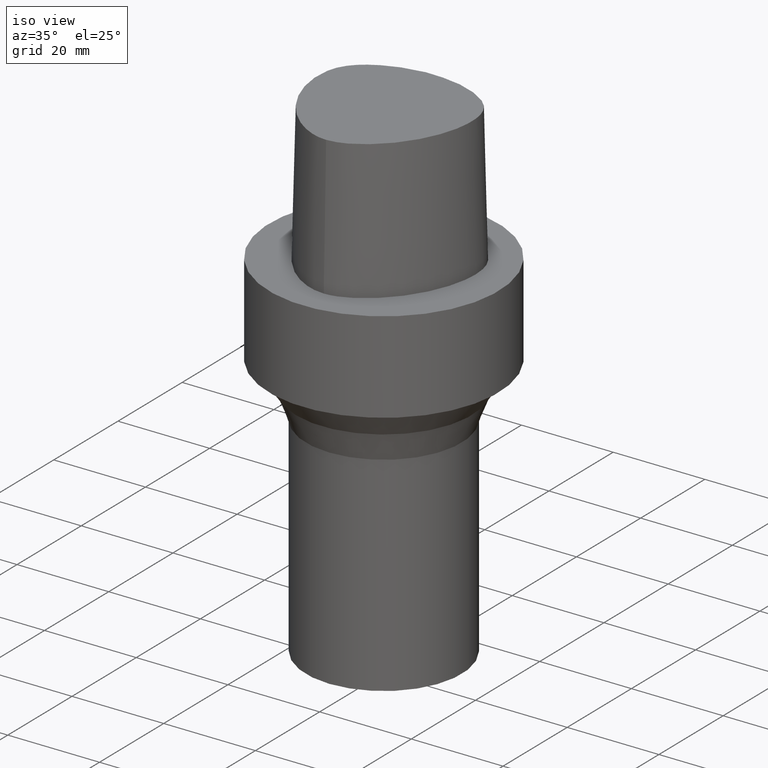
[diagram: clean part render]
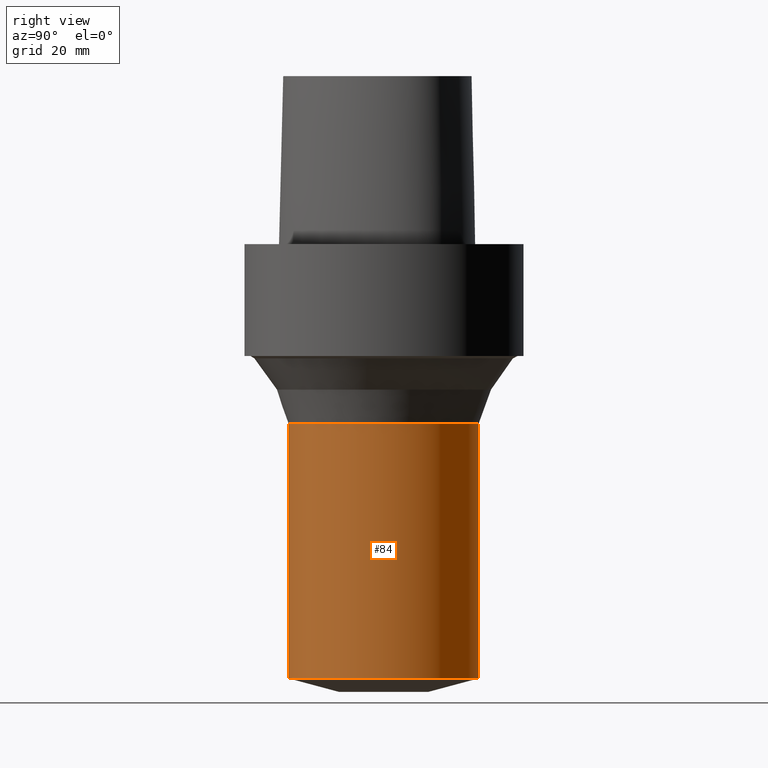
[diagram: tour spotlight — one face highlighted and labeled with its STEP entity id]
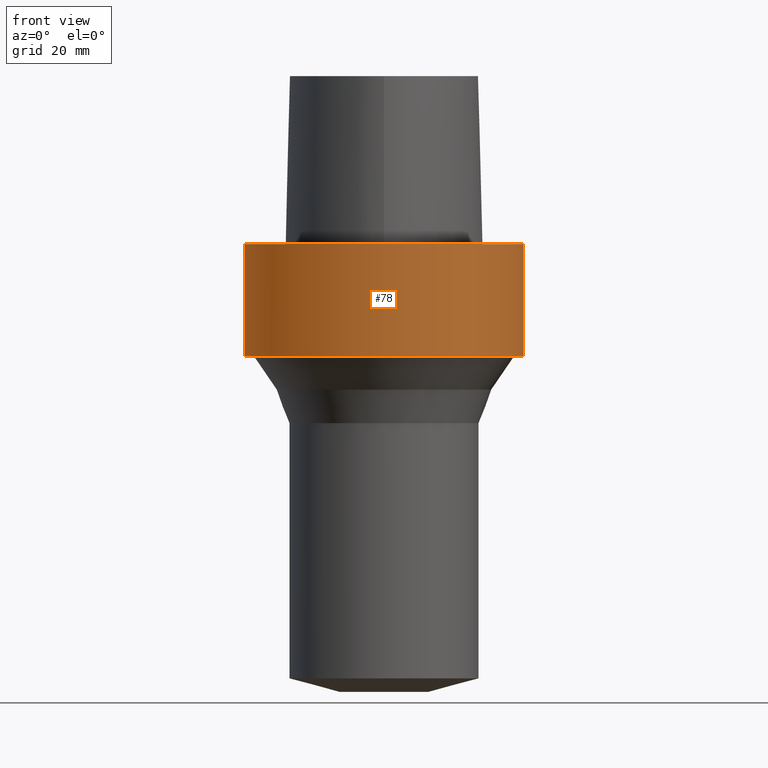
[diagram: tour spotlight — one face highlighted and labeled with its STEP entity id]
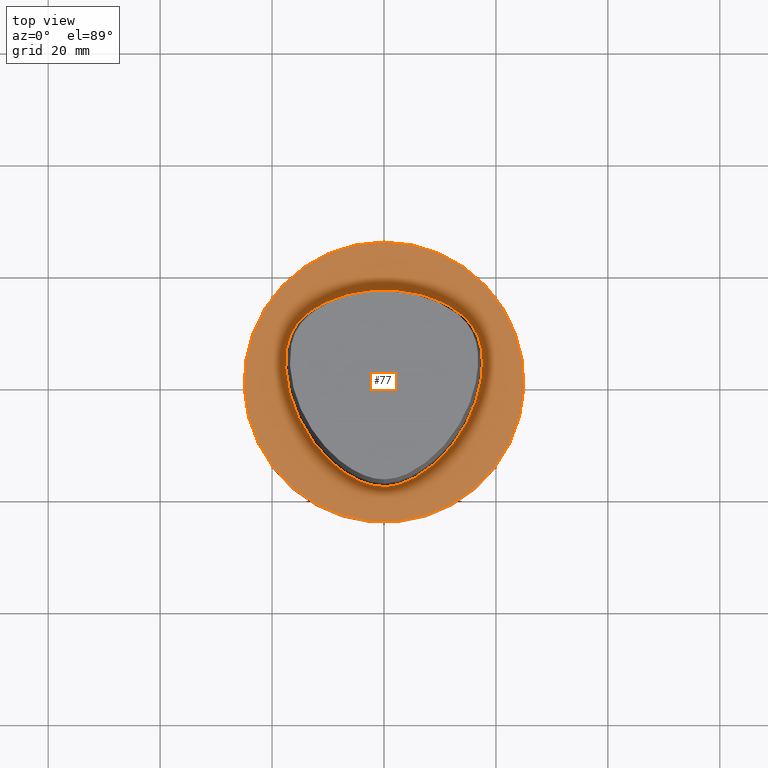
[diagram: tour spotlight — one face highlighted and labeled with its STEP entity id]
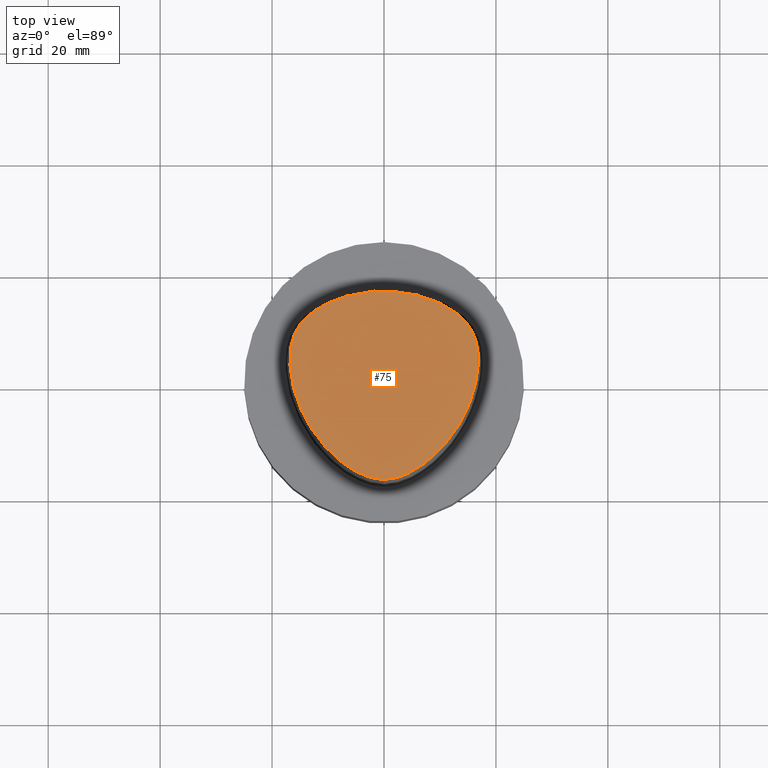
[diagram: tour spotlight — one face highlighted and labeled with its STEP entity id]
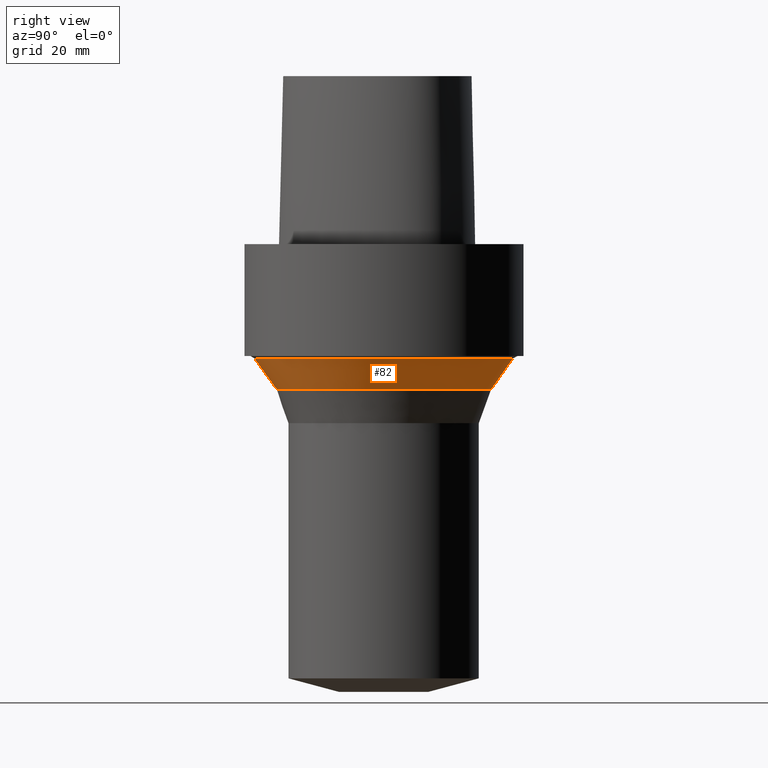
[diagram: tour spotlight — one face highlighted and labeled with its STEP entity id]
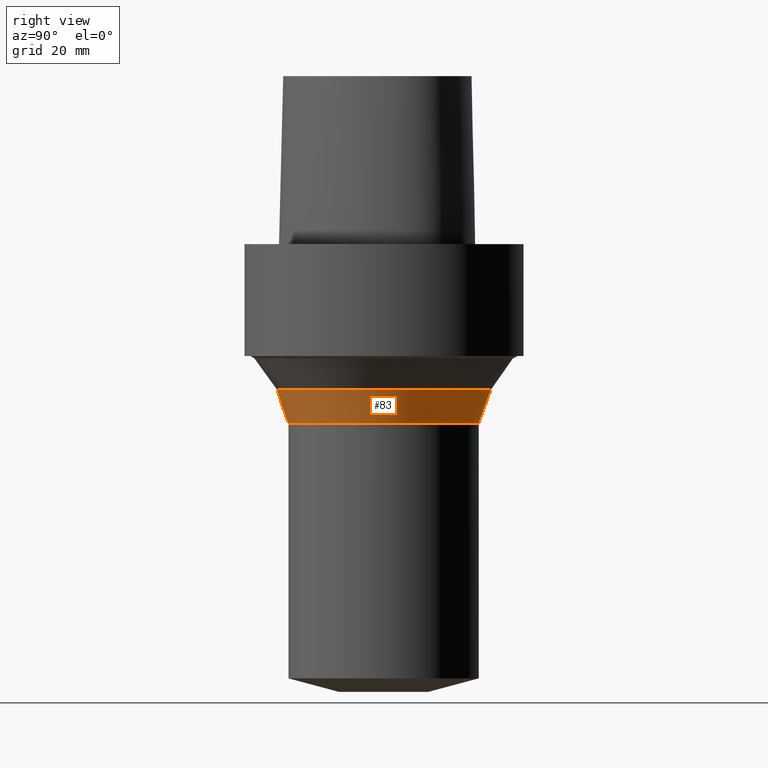
[diagram: tour spotlight — one face highlighted and labeled with its STEP entity id]
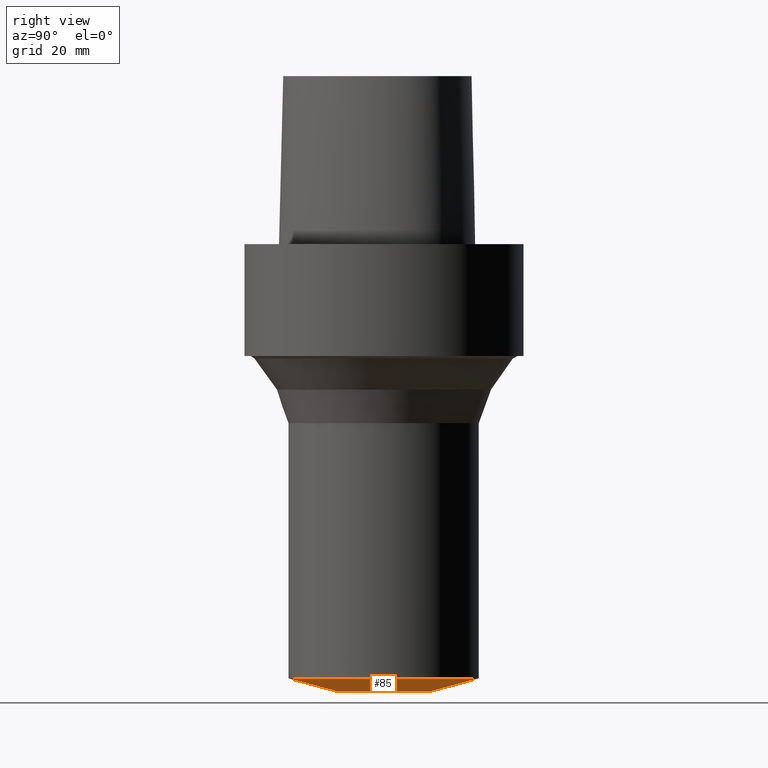
[diagram: tour spotlight — one face highlighted and labeled with its STEP entity id]
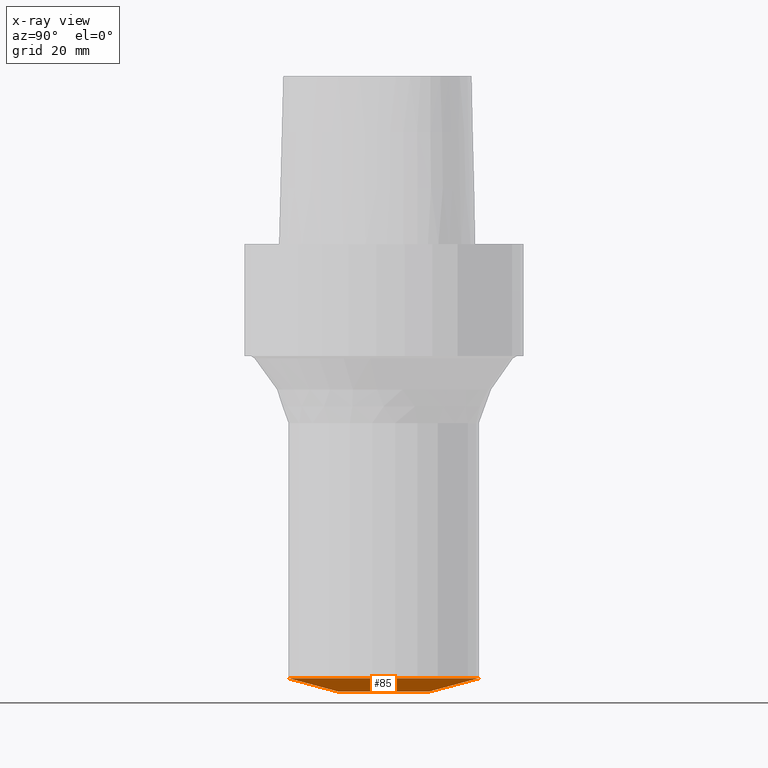
[diagram: x-ray of the same camera — body ghosted, this tour face saturated]
A machine part: a face-by-face anatomy tour. The part has 11 B-rep faces; the first image is the clean iso view, then the 7 largest visible faces are spotlighted one at a time (largest first), each with its STEP entity span.

Face 1 — right view, entity #84. In plain terms, the highlighted cylindrical surface (bore or boss wall) has radius 17 mm, axis along (-0, -0, 1).
Definition (entity closure, byte-faithful):
#84=ADVANCED_FACE('',(#111,#112),#113,.T.);
#111=FACE_BOUND('',#524,.T.);
#112=FACE_BOUND('',#525,.T.);
#113=CYLINDRICAL_SURFACE('',#526,17.0);
#524=EDGE_LOOP('',(#572));
#525=EDGE_LOOP('',(#573));
#526=AXIS2_PLACEMENT_3D('',#574,#575,#576);
#572=ORIENTED_EDGE('',*,*,#592,.F.);
#573=ORIENTED_EDGE('',*,*,#591,.T.);
#574=CARTESIAN_POINT('',(3.35517883539202E-015,6.71035767078405E-015,-54.7942286335624));
#575=DIRECTION('',(-6.12323399573676E-017,-1.22464679914735E-016,1.0));
#576=DIRECTION('',(-1.23259516440783E-032,1.0,1.22464679914735E-016));
#591=EDGE_CURVE('',#610,#610,#611,.T.);
#592=EDGE_CURVE('',#612,#612,#613,.T.);
#610=VERTEX_POINT('',#777);
#611=CIRCLE('',#778,17.0);
#612=VERTEX_POINT('',#779);
#613=CIRCLE('',#780,17.0);
#777=CARTESIAN_POINT('',(1.95943487893517E-015,17.0,-32.0000000048897));
#778=AXIS2_PLACEMENT_3D('',#799,#800,#801);
#779=CARTESIAN_POINT('',(4.75092279184887E-015,17.0,-77.5884572622352));
#780=AXIS2_PLACEMENT_3D('',#802,#803,#804);
#799=CARTESIAN_POINT('',(1.95943487893517E-015,3.91886975787035E-015,-32.0000000048897));
#800=DIRECTION('',(6.12323399573676E-017,1.22464679914735E-016,-1.0));
#801=DIRECTION('',(-1.23259516440783E-032,1.0,1.22464679914735E-016));
#802=CARTESIAN_POINT('',(4.75092279184887E-015,9.50184558369775E-015,-77.5884572622352));
#803=DIRECTION('',(6.12323399573676E-017,1.22464679914735E-016,-1.0));
#804=DIRECTION('',(-1.23259516440783E-032,1.0,1.22464679914735E-016));

Face 2 — front view, entity #78. In plain terms, the highlighted cylindrical surface (bore or boss wall) has radius 24.99 mm, axis along (-0, -0, 1).
Definition (entity closure, byte-faithful):
#78=ADVANCED_FACE('',(#94,#95),#96,.T.);
#94=FACE_BOUND('',#507,.T.);
#95=FACE_BOUND('',#508,.T.);
#96=CYLINDRICAL_SURFACE('',#509,24.99);
#507=EDGE_LOOP('',(#543));
#508=EDGE_LOOP('',(#544));
#509=AXIS2_PLACEMENT_3D('',#545,#546,#547);
#543=ORIENTED_EDGE('',*,*,#586,.F.);
#544=ORIENTED_EDGE('',*,*,#585,.T.);
#545=CARTESIAN_POINT('',(6.12323399573677E-016,1.22464679914735E-015,-10.0));
#546=DIRECTION('',(-6.12323399573677E-017,-1.22464679914735E-016,1.0));
#547=DIRECTION('',(-1.23259516440783E-032,1.0,1.22464679914735E-016));
#585=EDGE_CURVE('',#598,#598,#599,.T.);
#586=EDGE_CURVE('',#600,#600,#601,.T.);
#598=VERTEX_POINT('',#765);
#599=CIRCLE('',#766,24.99);
#600=VERTEX_POINT('',#767);
#601=CIRCLE('',#768,24.99);
#765=CARTESIAN_POINT('',(-3.08025531585517E-031,24.99,3.06039235106923E-015));
#766=AXIS2_PLACEMENT_3D('',#781,#782,#783);
#767=CARTESIAN_POINT('',(1.22464679914735E-015,24.99,-20.0));
#768=AXIS2_PLACEMENT_3D('',#784,#785,#786);
#781=CARTESIAN_POINT('',(0.0,0.0,0.0));
#782=DIRECTION('',(6.12323399573677E-017,1.22464679914735E-016,-1.0));
#783=DIRECTION('',(-1.23259516440783E-032,1.0,1.22464679914735E-016));
#784=CARTESIAN_POINT('',(1.22464679914735E-015,2.44929359829471E-015,-20.0));
#785=DIRECTION('',(6.12323399573677E-017,1.22464679914735E-016,-1.0));
#786=DIRECTION('',(-1.23259516440783E-032,1.0,1.22464679914735E-016));

Face 3 — top view, entity #77. In plain terms, the highlighted planar face has unit normal (-0, -0, 1).
Definition (entity closure, byte-faithful):
#77=ADVANCED_FACE('',(#91,#92),#93,.T.);
#91=FACE_BOUND('',#504,.T.);
#92=FACE_OUTER_BOUND('',#505,.T.);
#93=PLANE('',#506);
#504=EDGE_LOOP('',(#538));
#505=EDGE_LOOP('',(#539));
#506=AXIS2_PLACEMENT_3D('',#540,#541,#542);
#538=ORIENTED_EDGE('',*,*,#583,.T.);
#539=ORIENTED_EDGE('',*,*,#585,.F.);
#540=CARTESIAN_POINT('',(-1.54012765792758E-031,12.495,1.53019617553462E-015));
#541=DIRECTION('',(-6.12323399573677E-017,-1.22464679914735E-016,1.0));
#542=DIRECTION('',(1.23259516440783E-032,-1.0,-1.22464679914735E-016));
#583=EDGE_CURVE('',#595,#595,#596,.T.);
#585=EDGE_CURVE('',#598,#598,#599,.T.);
#595=VERTEX_POINT('',#664);
#596=B_SPLINE_CURVE_WITH_KNOTS('',3,(#665,#666,#667,#668,#669,#670,#671,#672,#673,#674,#675,#676,#677,#678,#679,#680,#681,#682,#683,#684,#685,#686,#687,#688,#689,#690,#691,#692,#693,#694,#695,#696,#697,#698,#699,#700,#701,#702,#703,#704,#705,#706,#707,#708,#709,#710,#711,#712,#713,#714,#715,#716,#717,#718,#719,#720,#721,#722,#723,#724,#725,#726,#727,#728,#729,#730,#731,#732,#733,#734,#735,#736,#737,#738,#739,#740,#741,#742,#743,#744,#745,#746,#747,#748,#749,#750,#751,#752,#753,#754,#755,#756,#757,#758,#759,#760),.UNSPECIFIED.,.T.,.F.,(4,2,2,2,2,2,2,2,2,2,2,2,2,2,2,2,2,2,2,2,2,2,2,2,2,2,2,2,2,2,2,2,2,2,2,2,2,2,2,2,2,2,2,2,2,2,2,4),(0.0,0.000251979175567,0.023135829350767,0.046149078767971,0.068686553945372,0.09058948843834,0.11187442371895,0.132659030725504,0.153111474090064,0.173428097006866,0.193812703683075,0.214465113334926,0.235566638619369,0.257256396596226,0.279590584305387,0.302476275092963,0.325611612149197,0.348735785989546,0.371826971229282,0.39455923139207,0.416669726533691,0.438154204641074,0.459103554741756,0.479643077908811,0.50010643098029,0.520399705216369,0.54092682403315,0.561890845659905,0.583370991138857,0.605476574502583,0.62820876493626,0.65131550684809,0.674427687768046,0.697531018602722,0.720425222070344,0.742763449220249,0.764449723968905,0.785551037463572,0.806204240231889,0.826588983931571,0.846905402970388,0.867357715119018,0.88814171778586,0.909429413217286,0.931324749020081,0.953885589892717,0.976862732393428,1.0),.UNSPECIFIED.);
#598=VERTEX_POINT('',#765);
#599=CIRCLE('',#766,24.99);
#664=CARTESIAN_POINT('',(-0.00144332333831829,-18.693734925237,1.58949405722709E-031));
#665=CARTESIAN_POINT('',(-0.00144332333831829,-18.693734925237,1.58949405722709E-031));
#666=CARTESIAN_POINT('',(-0.0107097733408023,-18.6937739851458,1.18444691579815E-031));
#667=CARTESIAN_POINT('',(-0.0199759398304303,-18.6937986220233,1.90667064494336E-031));
#668=CARTESIAN_POINT('',(-0.87073259155424,-18.6947332287258,-2.46519032881566E-032));
#669=CARTESIAN_POINT('',(-1.7132146687811,-18.5561236138986,-1.72563323017096E-031));
#670=CARTESIAN_POINT('',(-3.34678034951543,-18.1076178270182,1.23259516440783E-031));
#671=CARTESIAN_POINT('',(-4.13763295357352,-17.7966649911857,0.0));
#672=CARTESIAN_POINT('',(-5.64401230436313,-17.0611782657116,-1.4791141972894E-031));
#673=CARTESIAN_POINT('',(-6.36074874666199,-16.6390568826018,9.86076131526265E-032));
#674=CARTESIAN_POINT('',(-7.71193183747336,-15.717785465073,-9.86076131526265E-032));
#675=CARTESIAN_POINT('',(-8.34816817062737,-15.221133209089,-1.97215226305253E-031));
#676=CARTESIAN_POINT('',(-9.54864267958622,-14.1801662707339,0.0));
#677=CARTESIAN_POINT('',(-10.1143778244459,-13.6375391489888,-9.86076131526265E-032));
#678=CARTESIAN_POINT('',(-11.1785439970871,-12.5139706700162,-9.86076131526265E-032));
#679=CARTESIAN_POINT('',(-11.6782474581115,-11.9342299113078,0.0));
#680=CARTESIAN_POINT('',(-12.6162342990191,-10.7421055435185,-1.97215226305253E-031));
#681=CARTESIAN_POINT('',(-13.055371557502,-10.1303892417647,0.0));
#682=CARTESIAN_POINT('',(-13.8770457728377,-8.87590863790404,9.86076131526265E-032));
#683=CARTESIAN_POINT('',(-14.2599388402702,-8.2333768267112,-9.86076131526265E-032));
#684=CARTESIAN_POINT('',(-14.97168833234,-6.91623888397976,1.97215226305253E-031));
#685=CARTESIAN_POINT('',(-15.3003608122286,-6.24153310972228,0.0));
#686=CARTESIAN_POINT('',(-15.9019181796067,-4.85709547419161,0.0));
#687=CARTESIAN_POINT('',(-16.1740130050164,-4.14701882283056,1.97215226305253E-031));
#688=CARTESIAN_POINT('',(-16.6580397097976,-2.68928374551173,0.0));
#689=CARTESIAN_POINT('',(-16.8685476043865,-1.9411430240201,0.0));
#690=CARTESIAN_POINT('',(-17.2177110849312,-0.406254182783721,0.0));
#691=CARTESIAN_POINT('',(-17.3541927925624,0.380994664903646,0.0));
#692=CARTESIAN_POINT('',(-17.5416073974851,1.99022033864964,0.0));
#693=CARTESIAN_POINT('',(-17.5899626525416,2.81255460248461,0.0));
#694=CARTESIAN_POINT('',(-17.563584952533,4.47617713465644,0.0));
#695=CARTESIAN_POINT('',(-17.4857707493695,5.31746225938347,0.0));
#696=CARTESIAN_POINT('',(-17.1712152948197,6.98496502795616,0.0));
#697=CARTESIAN_POINT('',(-16.932846471387,7.81104073212088,0.0));
#698=CARTESIAN_POINT('',(-16.2234989303146,9.36022258130064,0.0));
#699=CARTESIAN_POINT('',(-15.7525288634429,10.0833544868442,0.0));
#700=CARTESIAN_POINT('',(-14.6462939775209,11.3794173305263,0.0));
#701=CARTESIAN_POINT('',(-14.0112703709932,11.9525998966018,0.0));
#702=CARTESIAN_POINT('',(-12.6649577858213,12.9708269345166,0.0));
#703=CARTESIAN_POINT('',(-11.9549187103733,13.4176956956896,9.86076131526265E-032));
#704=CARTESIAN_POINT('',(-10.5004911910335,14.1970175551563,0.0));
#705=CARTESIAN_POINT('',(-9.7575533569854,14.5322819629711,-9.86076131526265E-032));
#706=CARTESIAN_POINT('',(-8.26254539063019,15.1133265717584,-9.86076131526265E-032));
#707=CARTESIAN_POINT('',(-7.51128946075537,15.3613193072948,-9.86076131526265E-032));
#708=CARTESIAN_POINT('',(-6.00522655029125,15.7739014771636,0.0));
#709=CARTESIAN_POINT('',(-5.25098149060303,15.940365829473,4.93038065763132E-032));
#710=CARTESIAN_POINT('',(-3.74452370137136,16.1783002530882,4.93038065763132E-032));
#711=CARTESIAN_POINT('',(-2.9925639102356,16.2517640462219,-1.97215226305253E-031));
#712=CARTESIAN_POINT('',(-1.48914620895443,16.3898646921674,-1.84889274661175E-031));
#713=CARTESIAN_POINT('',(-0.737689844422075,16.454322887119,1.84889274661175E-031));
#714=CARTESIAN_POINT('',(0.759326987696435,16.4536103338567,6.77927340424307E-032));
#715=CARTESIAN_POINT('',(1.50487089700432,16.3916719627081,-1.97215226305253E-031));
#716=CARTESIAN_POINT('',(3.00152605278829,16.2529050894156,-7.39557098644699E-032));
#717=CARTESIAN_POINT('',(3.75259609178933,16.1756990011092,-9.86076131526265E-032));
#718=CARTESIAN_POINT('',(5.25866006360267,15.9348272624441,-1.4791141972894E-031));
#719=CARTESIAN_POINT('',(6.01339669607053,15.7693347335975,1.4791141972894E-031));
#720=CARTESIAN_POINT('',(7.52174791015443,15.3636385273713,0.0));
#721=CARTESIAN_POINT('',(8.27488011859475,15.1217203315759,0.0));
#722=CARTESIAN_POINT('',(9.77128987676661,14.5452319544132,9.86076131526265E-032));
#723=CARTESIAN_POINT('',(10.5136604457977,14.20816965576,0.0));
#724=CARTESIAN_POINT('',(11.9637825858721,13.4211978486476,-9.86076131526265E-032));
#725=CARTESIAN_POINT('',(12.6699581239128,12.9683397391863,1.97215226305253E-031));
#726=CARTESIAN_POINT('',(14.0107896940302,11.9417697294217,0.0));
#727=CARTESIAN_POINT('',(14.6441161661191,11.3662092641098,0.0));
#728=CARTESIAN_POINT('',(15.7473444143777,10.0678607932392,-1.97215226305253E-031));
#729=CARTESIAN_POINT('',(16.2172279070315,9.34515014826243,0.0));
#730=CARTESIAN_POINT('',(16.9299748942786,7.79911649806176,-1.97215226305253E-031));
#731=CARTESIAN_POINT('',(17.1732678868715,6.97591096726165,0.0));
#732=CARTESIAN_POINT('',(17.4947165291087,5.31078187777496,0.0));
#733=CARTESIAN_POINT('',(17.5742122859752,4.46891080588121,0.0));
#734=CARTESIAN_POINT('',(17.5984503582426,2.80469955056706,0.0));
#735=CARTESIAN_POINT('',(17.5464797751086,1.98232636532396,0.0));
#736=CARTESIAN_POINT('',(17.3530324455179,0.373802434650424,0.0));
#737=CARTESIAN_POINT('',(17.2140873477037,-0.412741037255912,0.0));
#738=CARTESIAN_POINT('',(16.8640679933744,-1.94732109648072,0.0));
#739=CARTESIAN_POINT('',(16.6550051401061,-2.69581759912329,0.0));
#740=CARTESIAN_POINT('',(16.1721668251879,-4.15391144824405,0.0));
#741=CARTESIAN_POINT('',(15.8998720313717,-4.86400476772738,0.0));
#742=CARTESIAN_POINT('',(15.2976461182969,-6.24821889850589,0.0));
#743=CARTESIAN_POINT('',(14.9685089040774,-6.9226902547916,0.0));
#744=CARTESIAN_POINT('',(14.2562315235154,-8.23953226144279,0.0));
#745=CARTESIAN_POINT('',(13.8732695848357,-8.88199998589755,0.0));
#746=CARTESIAN_POINT('',(13.0515094984057,-10.1364217212122,0.0));
#747=CARTESIAN_POINT('',(12.612354568037,-10.7481421677501,0.0));
#748=CARTESIAN_POINT('',(11.6737441165097,-11.9397215871539,0.0));
#749=CARTESIAN_POINT('',(11.1734254860308,-12.5189032007719,0.0));
#750=CARTESIAN_POINT('',(10.1074745701417,-13.640998338336,-9.86076131526265E-032));
#751=CARTESIAN_POINT('',(9.54055189248609,-14.182694679151,0.0));
#752=CARTESIAN_POINT('',(8.33747886858352,-15.2200706351975,-9.86076131526265E-032));
#753=CARTESIAN_POINT('',(7.69981598148188,-15.7139994399403,0.0));
#754=CARTESIAN_POINT('',(6.35130494327661,-16.6404483507205,-4.93038065763132E-032));
#755=CARTESIAN_POINT('',(5.6388427285293,-17.0707143827691,-9.86076131526265E-032));
#756=CARTESIAN_POINT('',(4.1368842572046,-17.8149844980219,-9.86076131526265E-032));
#757=CARTESIAN_POINT('',(3.3461818724523,-18.1267181400899,2.46519032881566E-032));
#758=CARTESIAN_POINT('',(1.70267749900168,-18.5649567925168,1.72563323017096E-031));
#759=CARTESIAN_POINT('',(0.849421963398066,-18.6901483607448,0.0));
#760=CARTESIAN_POINT('',(-0.00144332333831829,-18.693734925237,1.58949405722709E-031));
#765=CARTESIAN_POINT('',(-3.08025531585517E-031,24.99,3.06039235106923E-015));
#766=AXIS2_PLACEMENT_3D('',#781,#782,#783);
#781=CARTESIAN_POINT('',(0.0,0.0,0.0));
#782=DIRECTION('',(6.12323399573677E-017,1.22464679914735E-016,-1.0));
#783=DIRECTION('',(-1.23259516440783E-032,1.0,1.22464679914735E-016));

Face 4 — top view, entity #75. In plain terms, the highlighted planar face has unit normal (-0, 0, 1).
Definition (entity closure, byte-faithful):
#75=ADVANCED_FACE('',(#87),#88,.T.);
#87=FACE_OUTER_BOUND('',#117,.T.);
#88=PLANE('',#118);
#117=EDGE_LOOP('',(#530));
#118=AXIS2_PLACEMENT_3D('',#531,#532,#533);
#530=ORIENTED_EDGE('',*,*,#582,.F.);
#531=CARTESIAN_POINT('',(-0.000657534264248203,-1.65575572608802,30.0));
#532=DIRECTION('',(-0.0,2.95577857036584E-049,1.0));
#533=DIRECTION('',(1.0,0.0,0.0));
#582=EDGE_CURVE('',#593,#593,#594,.T.);
#593=VERTEX_POINT('',#614);
#594=B_SPLINE_CURVE_WITH_KNOTS('',3,(#615,#616,#617,#618,#619,#620,#621,#622,#623,#624,#625,#626,#627,#628,#629,#630,#631,#632,#633,#634,#635,#636,#637,#638,#639,#640,#641,#642,#643,#644,#645,#646,#647,#648,#649,#650,#651,#652,#653,#654,#655,#656,#657,#658,#659,#660,#661,#662,#663),.UNSPECIFIED.,.T.,.F.,(4,1,1,1,1,1,1,1,1,1,1,1,1,1,1,1,1,1,1,1,1,1,1,1,1,1,1,1,1,1,1,1,1,1,1,1,1,1,1,1,1,1,1,1,1,1,4),(0.0,0.023135829350767,0.046149078767971,0.068686553945372,0.09058948843834,0.11187442371895,0.132659030725504,0.153111474090064,0.173428097006866,0.193812703683075,0.214465113334926,0.235566638619369,0.257256396596226,0.279590584305387,0.302476275092963,0.325611612149197,0.348735785989546,0.371826971229282,0.39455923139207,0.416669726533691,0.438154204641074,0.459103554741756,0.479643077908811,0.50010643098029,0.520399705216369,0.54092682403315,0.561890845659905,0.583370991138857,0.605476574502583,0.62820876493626,0.65131550684809,0.674427687768046,0.697531018602722,0.720425222070344,0.742763449220249,0.764449723968905,0.785551037463572,0.806204240231889,0.826588983931571,0.846905402970388,0.867357715119018,0.88814171778586,0.909429413217286,0.931324749020081,0.953885589892717,0.976862732393428,1.0),.UNSPECIFIED.);
#614=CARTESIAN_POINT('',(-2.78602932413959E-015,-17.9423775546504,30.0));
#615=CARTESIAN_POINT('',(-2.78602932413959E-015,-17.9423775546504,30.0));
#616=CARTESIAN_POINT('',(-0.814120797978075,-17.9643878187761,30.0));
#617=CARTESIAN_POINT('',(-2.44279318309434,-17.6670056599032,30.0));
#618=CARTESIAN_POINT('',(-4.69065600148019,-16.7591312239375,30.0));
#619=CARTESIAN_POINT('',(-6.73157621234646,-15.527654017863,30.0));
#620=CARTESIAN_POINT('',(-8.55606567082544,-14.0980586872352,30.0));
#621=CARTESIAN_POINT('',(-10.1771160862307,-12.5294920614813,30.0));
#622=CARTESIAN_POINT('',(-11.6098311271326,-10.8549672983455,30.0));
#623=CARTESIAN_POINT('',(-12.8723444784573,-9.09084166630711,30.0));
#624=CARTESIAN_POINT('',(-13.9762474627415,-7.23982146073079,30.0));
#625=CARTESIAN_POINT('',(-14.9241349859217,-5.29636298798721,30.0));
#626=CARTESIAN_POINT('',(-15.7132736469777,-3.2533357158659,30.0));
#627=CARTESIAN_POINT('',(-16.3266313043064,-1.10238675181427,30.0));
#628=CARTESIAN_POINT('',(-16.7327867713303,1.15808256309649,30.0));
#629=CARTESIAN_POINT('',(-16.8801613787167,3.51564121263174,30.0));
#630=CARTESIAN_POINT('',(-16.6855836228514,5.92229128835704,30.0));
#631=CARTESIAN_POINT('',(-16.0281509658443,8.29517868854449,30.0));
#632=CARTESIAN_POINT('',(-14.6640408300166,10.3669104243273,30.0));
#633=CARTESIAN_POINT('',(-12.8332969997264,11.9882678763451,30.0));
#634=CARTESIAN_POINT('',(-10.7856401290832,13.2404482750702,30.0));
#635=CARTESIAN_POINT('',(-8.65298741417579,14.19764142693,30.0));
#636=CARTESIAN_POINT('',(-6.48957622042645,14.9235651413533,30.0));
#637=CARTESIAN_POINT('',(-4.30784954842127,15.2925809723717,30.0));
#638=CARTESIAN_POINT('',(-2.16867899857279,15.8525920055235,30.0));
#639=CARTESIAN_POINT('',(-0.0054980597270801,15.506533819507,30.0));
#640=CARTESIAN_POINT('',(2.15423811148254,15.6758925558313,30.0));
#641=CARTESIAN_POINT('',(4.31367631773855,15.3366483013887,30.0));
#642=CARTESIAN_POINT('',(6.49156913463884,14.9221231752341,30.0));
#643=CARTESIAN_POINT('',(8.65317555043793,14.199841033848,30.0));
#644=CARTESIAN_POINT('',(10.7855591317115,13.2388028674922,30.0));
#645=CARTESIAN_POINT('',(12.8289446834375,11.9844078416963,30.0));
#646=CARTESIAN_POINT('',(14.6809214389867,10.37934328945,30.0));
#647=CARTESIAN_POINT('',(15.9964040236072,8.28000660116028,30.0));
#648=CARTESIAN_POINT('',(16.6999197177274,5.92601467018833,30.0));
#649=CARTESIAN_POINT('',(16.8785470495877,3.51485696104406,30.0));
#650=CARTESIAN_POINT('',(16.7308989568545,1.15864914401017,30.0));
#651=CARTESIAN_POINT('',(16.3270119409732,-1.10262794482627,30.0));
#652=CARTESIAN_POINT('',(15.7138840293007,-3.25349612648562,30.0));
#653=CARTESIAN_POINT('',(14.9244427410538,-5.29647704660135,30.0));
#654=CARTESIAN_POINT('',(13.9756636589241,-7.23950698099948,30.0));
#655=CARTESIAN_POINT('',(12.8724663956831,-9.09088034657936,30.0));
#656=CARTESIAN_POINT('',(11.6099597844916,-10.8551381410581,30.0));
#657=CARTESIAN_POINT('',(10.1759690661341,-12.5282962499649,30.0));
#658=CARTESIAN_POINT('',(8.55887653552809,-14.1013446755591,30.0));
#659=CARTESIAN_POINT('',(6.72595297076831,-15.5205541881092,30.0));
#660=CARTESIAN_POINT('',(4.69995925068727,-16.7729025475684,30.0));
#661=CARTESIAN_POINT('',(2.43523789305481,-17.660279021922,30.0));
#662=CARTESIAN_POINT('',(0.814171408394767,-17.9203659222405,30.0));
#663=CARTESIAN_POINT('',(-2.83508942413959E-015,-17.9423775546504,30.0));

Face 5 — right view, entity #82. In plain terms, the highlighted conical surface has half-angle 35 deg.
Definition (entity closure, byte-faithful):
#82=ADVANCED_FACE('',(#105,#106),#107,.T.);
#105=FACE_BOUND('',#518,.T.);
#106=FACE_BOUND('',#519,.T.);
#107=CONICAL_SURFACE('',#520,21.1351515162234,0.61086523703814);
#518=EDGE_LOOP('',(#562));
#519=EDGE_LOOP('',(#563));
#520=AXIS2_PLACEMENT_3D('',#564,#565,#566);
#562=ORIENTED_EDGE('',*,*,#590,.F.);
#563=ORIENTED_EDGE('',*,*,#588,.T.);
#564=CARTESIAN_POINT('',(1.42139927605097E-015,2.84279855210193E-015,-23.2132117936469));
#565=DIRECTION('',(-6.12323399573677E-017,-1.22464679914735E-016,1.0));
#566=DIRECTION('',(-1.23259516440783E-032,1.0,1.22464679914735E-016));
#588=EDGE_CURVE('',#604,#604,#605,.T.);
#590=EDGE_CURVE('',#608,#608,#609,.T.);
#604=VERTEX_POINT('',#771);
#605=CIRCLE('',#772,23.0864816327038);
#608=VERTEX_POINT('',#775);
#609=CIRCLE('',#776,19.183821399743);
#771=CARTESIAN_POINT('',(1.25075771217715E-015,23.0864816327038,-20.4264235704201));
#772=AXIS2_PLACEMENT_3D('',#790,#791,#792);
#775=CARTESIAN_POINT('',(1.59204083992478E-015,19.183821399743,-26.0000000168738));
#776=AXIS2_PLACEMENT_3D('',#796,#797,#798);
#790=CARTESIAN_POINT('',(1.25075771217715E-015,2.5015154243543E-015,-20.4264235704201));
#791=DIRECTION('',(6.12323399573676E-017,1.22464679914735E-016,-1.0));
#792=DIRECTION('',(-1.23259516440783E-032,1.0,1.22464679914735E-016));
#796=CARTESIAN_POINT('',(1.59204083992478E-015,3.18408167984956E-015,-26.0000000168738));
#797=DIRECTION('',(6.12323399573677E-017,1.22464679914735E-016,-1.0));
#798=DIRECTION('',(-1.23259516440783E-032,1.0,1.22464679914735E-016));

Face 6 — right view, entity #83. In plain terms, the highlighted conical surface has half-angle 20 deg.
Definition (entity closure, byte-faithful):
#83=ADVANCED_FACE('',(#108,#109),#110,.T.);
#108=FACE_BOUND('',#521,.T.);
#109=FACE_BOUND('',#522,.T.);
#110=CONICAL_SURFACE('',#523,18.0919106998715,0.349065850179238);
#521=EDGE_LOOP('',(#567));
#522=EDGE_LOOP('',(#568));
#523=AXIS2_PLACEMENT_3D('',#569,#570,#571);
#567=ORIENTED_EDGE('',*,*,#591,.F.);
#568=ORIENTED_EDGE('',*,*,#590,.T.);
#569=CARTESIAN_POINT('',(1.77573785942998E-015,3.55147571885995E-015,-29.0000000108817));
#570=DIRECTION('',(-6.12323399573677E-017,-1.22464679914735E-016,1.0));
#571=DIRECTION('',(-1.23259516440783E-032,1.0,1.22464679914735E-016));
#590=EDGE_CURVE('',#608,#608,#609,.T.);
#591=EDGE_CURVE('',#610,#610,#611,.T.);
#608=VERTEX_POINT('',#775);
#609=CIRCLE('',#776,19.183821399743);
#610=VERTEX_POINT('',#777);
#611=CIRCLE('',#778,17.0);
#775=CARTESIAN_POINT('',(1.59204083992478E-015,19.183821399743,-26.0000000168738));
#776=AXIS2_PLACEMENT_3D('',#796,#797,#798);
#777=CARTESIAN_POINT('',(1.95943487893517E-015,17.0,-32.0000000048897));
#778=AXIS2_PLACEMENT_3D('',#799,#800,#801);
#796=CARTESIAN_POINT('',(1.59204083992478E-015,3.18408167984956E-015,-26.0000000168738));
#797=DIRECTION('',(6.12323399573677E-017,1.22464679914735E-016,-1.0));
#798=DIRECTION('',(-1.23259516440783E-032,1.0,1.22464679914735E-016));
#799=CARTESIAN_POINT('',(1.95943487893517E-015,3.91886975787035E-015,-32.0000000048897));
#800=DIRECTION('',(6.12323399573676E-017,1.22464679914735E-016,-1.0));
#801=DIRECTION('',(-1.23259516440783E-032,1.0,1.22464679914735E-016));

Face 7 — right view, entity #85. An x-ray twin of the same camera follows (body ghosted, this face saturated) — the face is partly hidden behind the body. In plain terms, the highlighted conical surface has half-angle 75 deg.
Definition (entity closure, byte-faithful):
#85=ADVANCED_FACE('',(#114,#115),#116,.T.);
#114=FACE_BOUND('',#527,.T.);
#115=FACE_BOUND('',#528,.T.);
#116=CONICAL_SURFACE('',#529,12.5000000013645,1.30899693830988);
#527=EDGE_LOOP('',(#577));
#528=EDGE_LOOP('',(#578));
#529=AXIS2_PLACEMENT_3D('',#579,#580,#581);
#577=ORIENTED_EDGE('',*,*,#589,.F.);
#578=ORIENTED_EDGE('',*,*,#592,.T.);
#579=CARTESIAN_POINT('',(4.82475499421914E-015,9.64950998843829E-015,-78.7942286311176));
#580=DIRECTION('',(-6.12323399573677E-017,-1.22464679914735E-016,1.0));
#581=DIRECTION('',(-1.23259516440783E-032,1.0,1.22464679914735E-016));
#589=EDGE_CURVE('',#606,#606,#607,.T.);
#592=EDGE_CURVE('',#612,#612,#613,.T.);
#606=VERTEX_POINT('',#773);
#607=CIRCLE('',#774,8.00000000272891);
#612=VERTEX_POINT('',#779);
#613=CIRCLE('',#780,17.0);
#773=CARTESIAN_POINT('',(4.89858719658941E-015,8.00000000272892,-80.0));
#774=AXIS2_PLACEMENT_3D('',#793,#794,#795);
#779=CARTESIAN_POINT('',(4.75092279184887E-015,17.0,-77.5884572622352));
#780=AXIS2_PLACEMENT_3D('',#802,#803,#804);
#793=CARTESIAN_POINT('',(4.89858719658941E-015,9.79717439317882E-015,-80.0));
#794=DIRECTION('',(6.12323399573676E-017,1.22464679914735E-016,-1.0));
#795=DIRECTION('',(-1.23259516440783E-032,1.0,1.22464679914735E-016));
#802=CARTESIAN_POINT('',(4.75092279184887E-015,9.50184558369775E-015,-77.5884572622352));
#803=DIRECTION('',(6.12323399573676E-017,1.22464679914735E-016,-1.0));
#804=DIRECTION('',(-1.23259516440783E-032,1.0,1.22464679914735E-016));